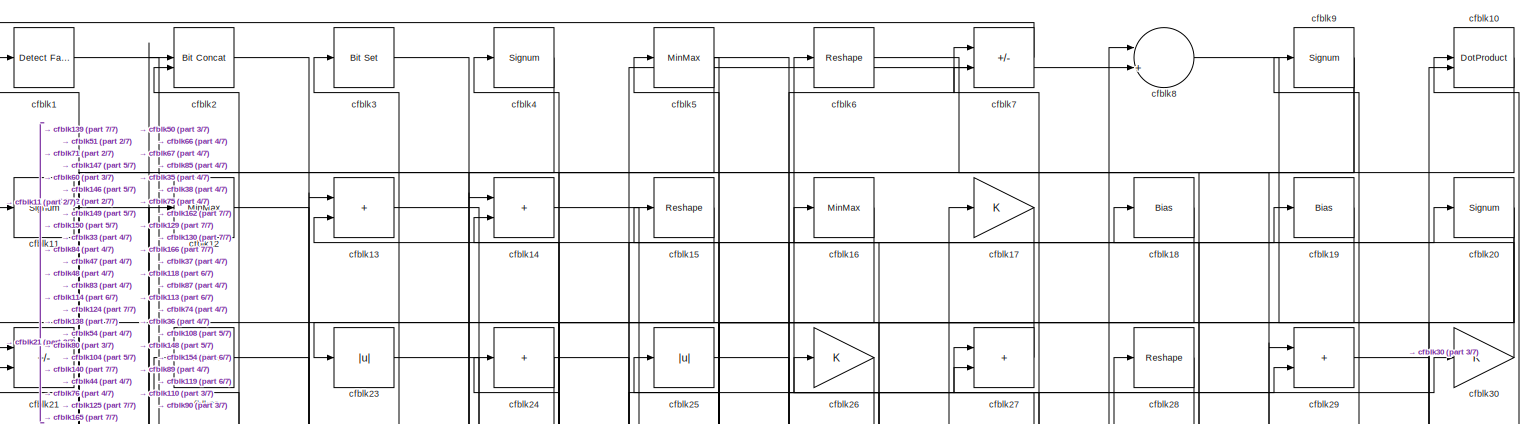
[diagram: root canvas - part 1/7, full width, top band]
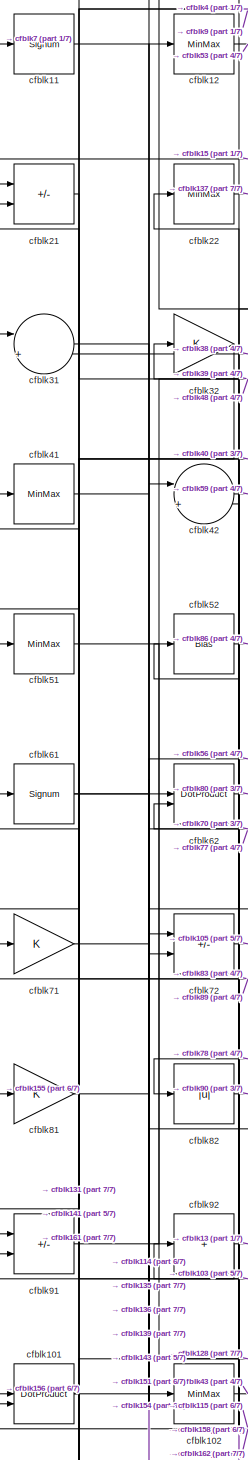
[diagram: root canvas - part 2/7, middle left region]
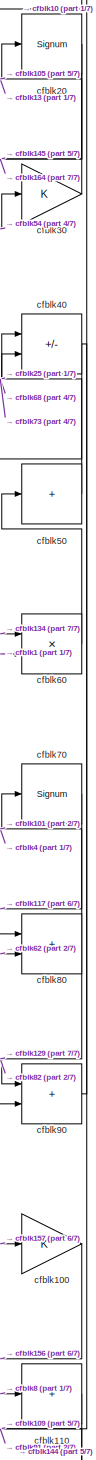
[diagram: root canvas - part 3/7, middle right region]
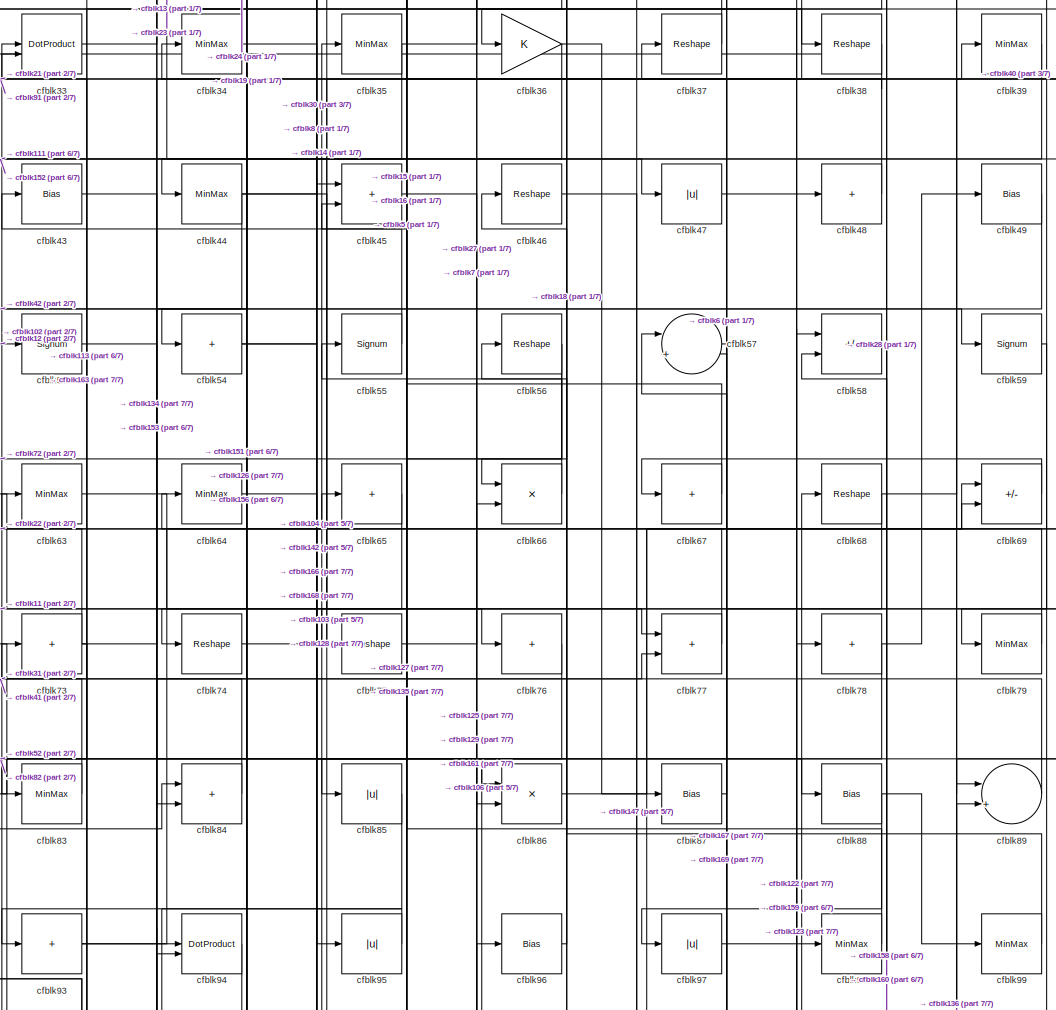
[diagram: root canvas - part 4/7, central region]
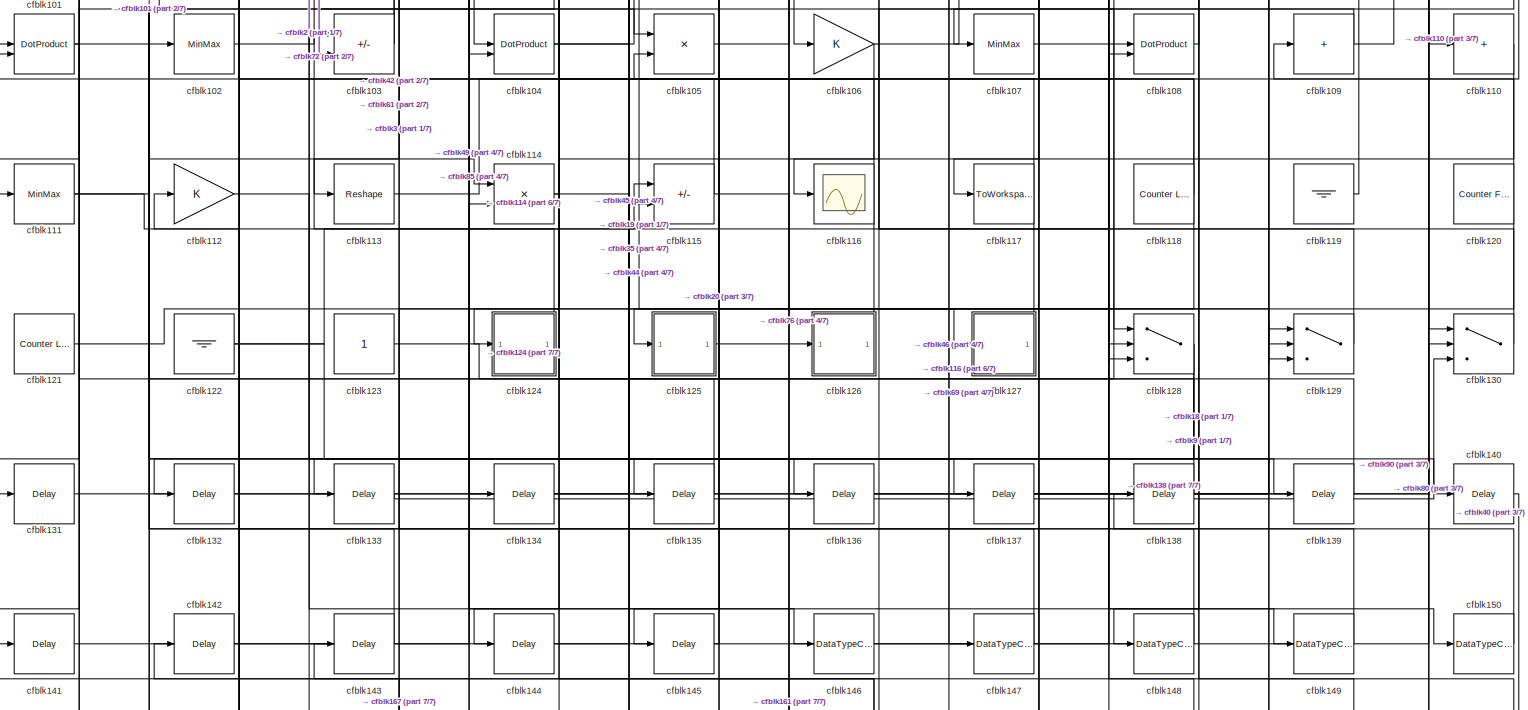
[diagram: root canvas - part 5/7, full width, bottom band]
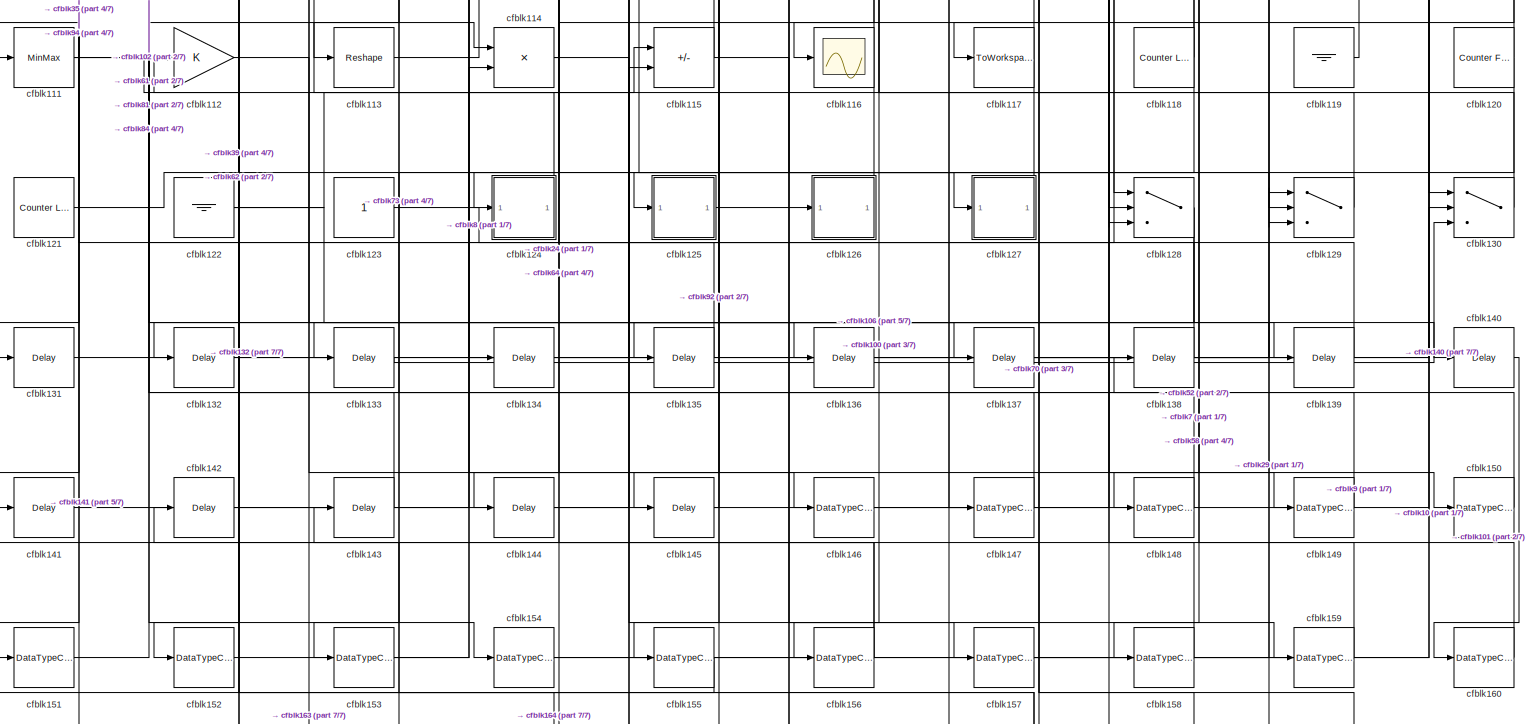
[diagram: root canvas - part 6/7, full width, bottom band]
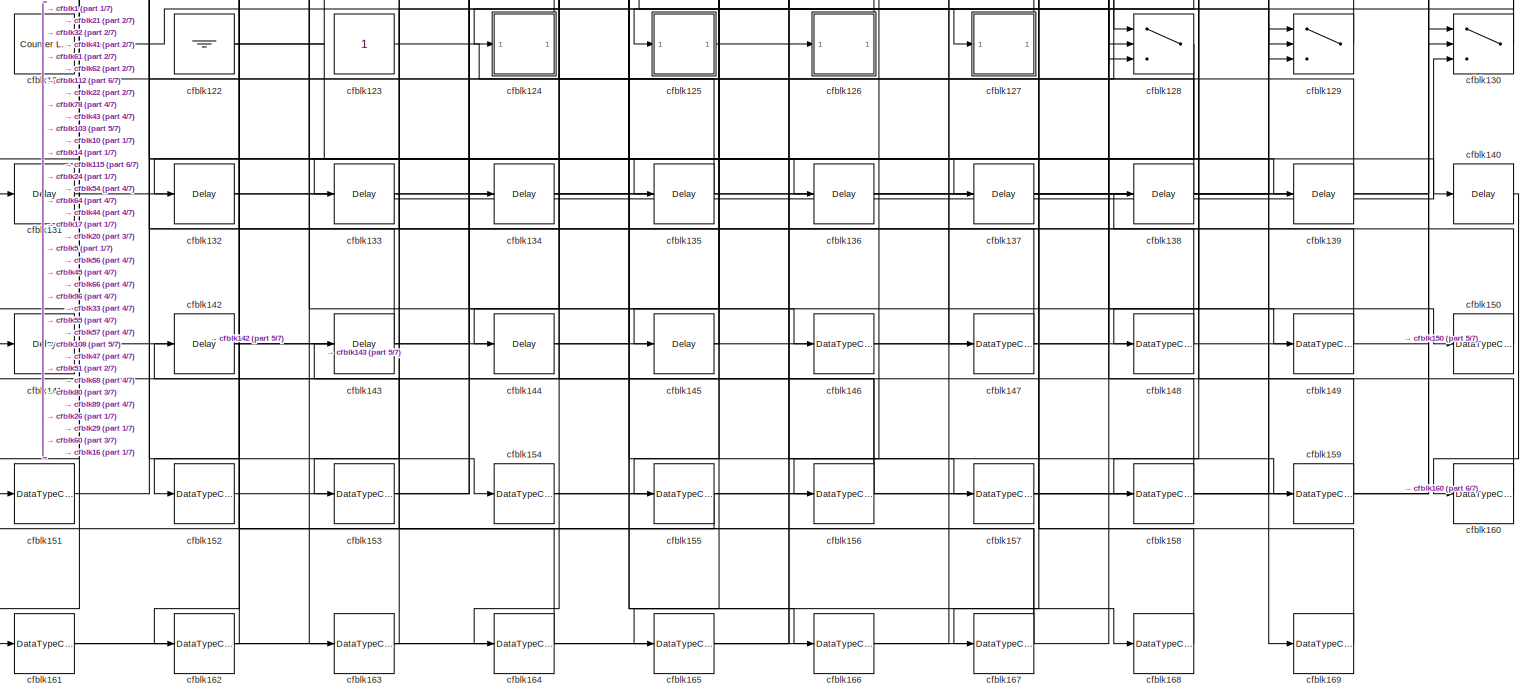
[diagram: root canvas - part 7/7, full width, bottom band]
MODEL slx_54edd1a698bd
KIND model
CONFIG AbsTol = auto
CONFIG EnableMultiTasking = off
CONFIG FixedStep = auto
CONFIG MaxStep = auto
CONFIG MinStep = auto
CONFIG RelTol = 1e-3
CONFIG SampleTimeConstraint = Unconstrained
CONFIG SolverName = VariableStepAuto
CONFIG StartTime = 0.0
CONFIG StopTime = 10.0
BLOCK [Reference] cfblk1  REF=hdlsllib/Logic and Bit
Operations/Detect Fall
Nonpositive
  SourceBlock = hdlsllib/Logic and Bit\nOperations/Detect Fall\nNonpositive
  SourceType = Detect Fall Nonpositive
BLOCK [DotProduct] cfblk10
  OutDataTypeStr = Inherit: Inherit via internal rule
BLOCK [Gain] cfblk100
BLOCK [DotProduct] cfblk101
  OutDataTypeStr = Inherit: Inherit via internal rule
BLOCK [MinMax] cfblk102
BLOCK [Sum] cfblk103
  IconShape = rectangular
  Inputs = +-
BLOCK [DotProduct] cfblk104
  OutDataTypeStr = Inherit: Inherit via internal rule
BLOCK [Product] cfblk105
  Inputs = */
  RndMeth = Zero
  SaturateOnIntegerOverflow = on
BLOCK [Gain] cfblk106
BLOCK [MinMax] cfblk107
BLOCK [DotProduct] cfblk108
  OutDataTypeStr = Inherit: Inherit via internal rule
BLOCK [Sum] cfblk109
  IconShape = rectangular
  Inputs = +
BLOCK [Signum] cfblk11
BLOCK [Sum] cfblk110
  IconShape = rectangular
  Inputs = +
BLOCK [MinMax] cfblk111
BLOCK [Gain] cfblk112
BLOCK [Reshape] cfblk113
BLOCK [Product] cfblk114
  Inputs = */
  RndMeth = Zero
  SaturateOnIntegerOverflow = on
BLOCK [Sum] cfblk115
  IconShape = rectangular
  Inputs = +-
BLOCK [Scope] cfblk116
  Floating = off
  NumInputPorts = 1
  ScopeSpecificationString = Simulink.scopes.TimeScopeBlockCfg('CurrentConfiguration', extmgr.ConfigurationSet(extmgr.Configuration('Core','General UI',true),extmgr.Configuration('Core','Source UI',true),extmgr.Configuration('Sources','WiredSimulink',true,'DataLoggingVariableName','ScopeData2','DataLoggingSaveFormat','Array','DataLoggingLimitDataPoints',true,'DataLoggingDecimation','1'),extmgr.Configuration('Visuals','Time Do...<+868ch>
BLOCK [ToWorkspace] cfblk117
  MaxDataPoints = inf
  SampleTime = -1
  SaveFormat = Timeseries
  VariableName = simout
BLOCK [Reference] cfblk118  REF=hdlsllib/Sources/Counter
Limited
  SourceBlock = hdlsllib/Sources/Counter\nLimited
  SourceType = Counter Limited
BLOCK [Ground] cfblk119
BLOCK [MinMax] cfblk12
BLOCK [Reference] cfblk120  REF=hdlsllib/Sources/Counter
Free-Running
  SourceBlock = hdlsllib/Sources/Counter\nFree-Running
  SourceType = Counter Free-Running
BLOCK [Reference] cfblk121  REF=hdlsllib/Sources/Counter
Limited
  SourceBlock = hdlsllib/Sources/Counter\nLimited
  SourceType = Counter Limited
BLOCK [Ground] cfblk122
BLOCK [Constant] cfblk123
  SampleTime = -1
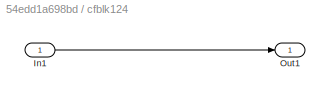
BLOCK [SubSystem] cfblk124
  LibrarySourceBlock = hdlsllib/Ports &\nSubsystems/Subsystem
BLOCK [Inport] cfblk124/In1
BLOCK [Outport] cfblk124/Out1
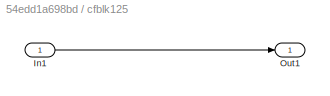
BLOCK [SubSystem] cfblk125
  LibrarySourceBlock = hdlsllib/Ports &\nSubsystems/Subsystem
BLOCK [Inport] cfblk125/In1
BLOCK [Outport] cfblk125/Out1
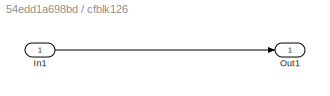
BLOCK [SubSystem] cfblk126
  LibrarySourceBlock = hdlsllib/Ports &\nSubsystems/Subsystem
BLOCK [Inport] cfblk126/In1
BLOCK [Outport] cfblk126/Out1
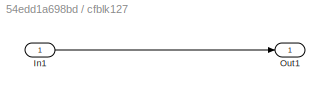
BLOCK [SubSystem] cfblk127
  LibrarySourceBlock = hdlsllib/Ports &\nSubsystems/Subsystem
BLOCK [Inport] cfblk127/In1
BLOCK [Outport] cfblk127/Out1
BLOCK [Switch] cfblk128
  InputSameDT = off
  SaturateOnIntegerOverflow = off
BLOCK [Switch] cfblk129
  InputSameDT = off
  SaturateOnIntegerOverflow = off
BLOCK [Sum] cfblk13
  IconShape = rectangular
BLOCK [Switch] cfblk130
  InputSameDT = off
  SaturateOnIntegerOverflow = off
BLOCK [Delay] cfblk131
  InputPortMap = u0
  SampleTime = 1
BLOCK [Delay] cfblk132
  InputPortMap = u0
  SampleTime = 1
BLOCK [Delay] cfblk133
  InputPortMap = u0
  SampleTime = 1
BLOCK [Delay] cfblk134
  InputPortMap = u0
  SampleTime = 1
BLOCK [Delay] cfblk135
  InputPortMap = u0
  SampleTime = 1
BLOCK [Delay] cfblk136
  InputPortMap = u0
  SampleTime = 1
BLOCK [Delay] cfblk137
  InputPortMap = u0
  SampleTime = 1
BLOCK [Delay] cfblk138
  InputPortMap = u0
  SampleTime = 1
BLOCK [Delay] cfblk139
  InputPortMap = u0
  SampleTime = 1
BLOCK [Sum] cfblk14
  IconShape = rectangular
BLOCK [Delay] cfblk140
  InputPortMap = u0
  SampleTime = 1
BLOCK [Delay] cfblk141
  InputPortMap = u0
  SampleTime = 1
BLOCK [Delay] cfblk142
  InputPortMap = u0
  SampleTime = 1
BLOCK [Delay] cfblk143
  InputPortMap = u0
  SampleTime = 1
BLOCK [Delay] cfblk144
  InputPortMap = u0
  SampleTime = 1
BLOCK [Delay] cfblk145
  InputPortMap = u0
  SampleTime = 1
BLOCK [DataTypeConversion] cfblk146
  OutDataTypeStr = uint8
  RndMeth = Floor
  SaturateOnIntegerOverflow = off
BLOCK [DataTypeConversion] cfblk147
  OutDataTypeStr = uint8
  RndMeth = Floor
  SaturateOnIntegerOverflow = off
BLOCK [DataTypeConversion] cfblk148
  OutDataTypeStr = uint8
  RndMeth = Floor
  SaturateOnIntegerOverflow = off
BLOCK [DataTypeConversion] cfblk149
  OutDataTypeStr = boolean
  RndMeth = Floor
  SaturateOnIntegerOverflow = off
BLOCK [Reshape] cfblk15
BLOCK [DataTypeConversion] cfblk150
  OutDataTypeStr = uint8
  RndMeth = Floor
  SaturateOnIntegerOverflow = off
BLOCK [DataTypeConversion] cfblk151
  OutDataTypeStr = uint8
  RndMeth = Floor
  SaturateOnIntegerOverflow = off
BLOCK [DataTypeConversion] cfblk152
  OutDataTypeStr = uint8
  RndMeth = Floor
  SaturateOnIntegerOverflow = off
BLOCK [DataTypeConversion] cfblk153
  OutDataTypeStr = uint8
  RndMeth = Floor
  SaturateOnIntegerOverflow = off
BLOCK [DataTypeConversion] cfblk154
  RndMeth = Floor
  SaturateOnIntegerOverflow = off
BLOCK [DataTypeConversion] cfblk155
  OutDataTypeStr = uint8
  RndMeth = Floor
  SaturateOnIntegerOverflow = off
BLOCK [DataTypeConversion] cfblk156
  RndMeth = Floor
  SaturateOnIntegerOverflow = off
BLOCK [DataTypeConversion] cfblk157
  OutDataTypeStr = uint8
  RndMeth = Floor
  SaturateOnIntegerOverflow = off
BLOCK [DataTypeConversion] cfblk158
  OutDataTypeStr = uint8
  RndMeth = Floor
  SaturateOnIntegerOverflow = off
BLOCK [DataTypeConversion] cfblk159
  OutDataTypeStr = uint8
  RndMeth = Floor
  SaturateOnIntegerOverflow = off
BLOCK [MinMax] cfblk16
BLOCK [DataTypeConversion] cfblk160
  OutDataTypeStr = uint8
  RndMeth = Floor
  SaturateOnIntegerOverflow = off
BLOCK [DataTypeConversion] cfblk161
  RndMeth = Floor
  SaturateOnIntegerOverflow = off
BLOCK [DataTypeConversion] cfblk162
  OutDataTypeStr = uint8
  RndMeth = Floor
  SaturateOnIntegerOverflow = off
BLOCK [DataTypeConversion] cfblk163
  OutDataTypeStr = uint8
  RndMeth = Floor
  SaturateOnIntegerOverflow = off
BLOCK [DataTypeConversion] cfblk164
  OutDataTypeStr = uint8
  RndMeth = Floor
  SaturateOnIntegerOverflow = off
BLOCK [DataTypeConversion] cfblk165
  OutDataTypeStr = uint8
  RndMeth = Floor
  SaturateOnIntegerOverflow = off
BLOCK [DataTypeConversion] cfblk166
  OutDataTypeStr = uint8
  RndMeth = Floor
  SaturateOnIntegerOverflow = off
BLOCK [DataTypeConversion] cfblk167
  RndMeth = Floor
  SaturateOnIntegerOverflow = off
BLOCK [DataTypeConversion] cfblk168
  OutDataTypeStr = uint8
  RndMeth = Floor
  SaturateOnIntegerOverflow = off
BLOCK [DataTypeConversion] cfblk169
  OutDataTypeStr = uint8
  RndMeth = Floor
  SaturateOnIntegerOverflow = off
BLOCK [Gain] cfblk17
BLOCK [Bias] cfblk18
  Bias = 0.0
  SaturateOnIntegerOverflow = off
BLOCK [Bias] cfblk19
  Bias = 0.0
  SaturateOnIntegerOverflow = off
BLOCK [Reference] cfblk2  REF=hdlsllib/Logic and Bit
Operations/Bit Concat
  SourceBlock = hdlsllib/Logic and Bit\nOperations/Bit Concat
  SourceType = Bit Concat
BLOCK [Signum] cfblk20
BLOCK [Sum] cfblk21
  IconShape = rectangular
  Inputs = +-
BLOCK [MinMax] cfblk22
BLOCK [Abs] cfblk23
  SaturateOnIntegerOverflow = off
BLOCK [Sum] cfblk24
  IconShape = rectangular
  Inputs = +
BLOCK [Abs] cfblk25
  SaturateOnIntegerOverflow = off
BLOCK [Gain] cfblk26
BLOCK [Sum] cfblk27
  IconShape = rectangular
BLOCK [Reshape] cfblk28
BLOCK [Sum] cfblk29
  IconShape = rectangular
BLOCK [Reference] cfblk3  REF=simulink/Logic and Bit
Operations/Bit Set
  LibrarySourceBlock = hdlsllib/Logic and Bit\nOperations/Bit Set
  SourceBlock = simulink/Logic and Bit\nOperations/Bit Set
  SourceType = Bit Set
BLOCK [Gain] cfblk30
BLOCK [Sum] cfblk31
  Inputs = |++
BLOCK [Gain] cfblk32
BLOCK [DotProduct] cfblk33
  OutDataTypeStr = Inherit: Inherit via internal rule
BLOCK [MinMax] cfblk34
BLOCK [MinMax] cfblk35
BLOCK [Gain] cfblk36
BLOCK [Reshape] cfblk37
BLOCK [Reshape] cfblk38
BLOCK [MinMax] cfblk39
BLOCK [Signum] cfblk4
BLOCK [Sum] cfblk40
  IconShape = rectangular
  Inputs = +-
BLOCK [MinMax] cfblk41
BLOCK [Sum] cfblk42
  Inputs = |++
BLOCK [Bias] cfblk43
  Bias = 0.0
  SaturateOnIntegerOverflow = off
BLOCK [MinMax] cfblk44
BLOCK [Sum] cfblk45
  IconShape = rectangular
BLOCK [Reshape] cfblk46
BLOCK [Abs] cfblk47
  SaturateOnIntegerOverflow = off
BLOCK [Sum] cfblk48
  IconShape = rectangular
  Inputs = +
BLOCK [Bias] cfblk49
  Bias = 0.0
  SaturateOnIntegerOverflow = off
BLOCK [MinMax] cfblk5
BLOCK [Sum] cfblk50
  IconShape = rectangular
  Inputs = +
BLOCK [MinMax] cfblk51
BLOCK [Bias] cfblk52
  Bias = 0.0
  SaturateOnIntegerOverflow = off
BLOCK [Signum] cfblk53
BLOCK [Sum] cfblk54
  IconShape = rectangular
  Inputs = +
BLOCK [Signum] cfblk55
BLOCK [Reshape] cfblk56
BLOCK [Sum] cfblk57
  Inputs = |++
BLOCK [Sum] cfblk58
  IconShape = rectangular
  Inputs = +-
BLOCK [Signum] cfblk59
BLOCK [Reshape] cfblk6
BLOCK [Product] cfblk60
  Inputs = */
  RndMeth = Zero
  SaturateOnIntegerOverflow = on
BLOCK [Signum] cfblk61
BLOCK [DotProduct] cfblk62
  OutDataTypeStr = Inherit: Inherit via internal rule
BLOCK [MinMax] cfblk63
BLOCK [MinMax] cfblk64
BLOCK [Sum] cfblk65
  IconShape = rectangular
  Inputs = +
BLOCK [Product] cfblk66
  Inputs = */
  RndMeth = Zero
  SaturateOnIntegerOverflow = on
BLOCK [Sum] cfblk67
  IconShape = rectangular
  Inputs = +
BLOCK [Reshape] cfblk68
BLOCK [Sum] cfblk69
  IconShape = rectangular
  Inputs = +-
BLOCK [Sum] cfblk7
  IconShape = rectangular
  Inputs = +-
BLOCK [Signum] cfblk70
BLOCK [Gain] cfblk71
BLOCK [Sum] cfblk72
  IconShape = rectangular
  Inputs = +-
BLOCK [Sum] cfblk73
  IconShape = rectangular
  Inputs = +
BLOCK [Reshape] cfblk74
BLOCK [Reshape] cfblk75
BLOCK [Sum] cfblk76
  IconShape = rectangular
  Inputs = +
BLOCK [Sum] cfblk77
  IconShape = rectangular
BLOCK [Sum] cfblk78
  IconShape = rectangular
  Inputs = +
BLOCK [MinMax] cfblk79
BLOCK [Sum] cfblk8
  Inputs = |++
BLOCK [Sum] cfblk80
  IconShape = rectangular
BLOCK [Gain] cfblk81
BLOCK [Abs] cfblk82
  SaturateOnIntegerOverflow = off
BLOCK [MinMax] cfblk83
BLOCK [Sum] cfblk84
  IconShape = rectangular
BLOCK [Abs] cfblk85
  SaturateOnIntegerOverflow = off
BLOCK [Product] cfblk86
  Inputs = */
  RndMeth = Zero
  SaturateOnIntegerOverflow = on
BLOCK [Bias] cfblk87
  Bias = 0.0
  SaturateOnIntegerOverflow = off
BLOCK [Bias] cfblk88
  Bias = 0.0
  SaturateOnIntegerOverflow = off
BLOCK [Sum] cfblk89
  Inputs = |++
BLOCK [Signum] cfblk9
BLOCK [Sum] cfblk90
  IconShape = rectangular
BLOCK [Sum] cfblk91
  IconShape = rectangular
  Inputs = +-
BLOCK [Sum] cfblk92
  IconShape = rectangular
  Inputs = +
BLOCK [Sum] cfblk93
  IconShape = rectangular
  Inputs = +
BLOCK [DotProduct] cfblk94
  OutDataTypeStr = Inherit: Inherit via internal rule
BLOCK [Abs] cfblk95
  SaturateOnIntegerOverflow = off
BLOCK [Bias] cfblk96
  Bias = 0.0
  SaturateOnIntegerOverflow = off
BLOCK [Abs] cfblk97
  SaturateOnIntegerOverflow = off
BLOCK [MinMax] cfblk98
BLOCK [MinMax] cfblk99
LINE cfblk100:1 -> cfblk156:1
NET cfblk101:1 -> cfblk141:1, cfblk70:1
LINE cfblk102:1 -> cfblk43:1
NET cfblk103:1 -> cfblk42:2, cfblk61:1
NET cfblk104:1 -> cfblk19:1, cfblk35:1
LINE cfblk105:1 -> cfblk20:1
NET cfblk106:1 -> cfblk116:1, cfblk69:2
LINE cfblk107:1 -> cfblk149:1
LINE cfblk108:1 -> cfblk18:1
NET cfblk109:1 -> cfblk107:1, cfblk90:2
LINE cfblk10:1 -> cfblk124:1
LINE cfblk110:1 -> cfblk144:1
NET cfblk111:1 -> cfblk115:1, cfblk84:1
LINE cfblk112:1 -> cfblk163:1
LINE cfblk113:1 -> cfblk8:1
NET cfblk114:1 -> cfblk157:1, cfblk24:1
NET cfblk115:1 -> cfblk159:1, cfblk92:1
NET cfblk118:1 -> cfblk155:1, cfblk52:1, cfblk7:2
LINE cfblk119:1 -> cfblk9:1
LINE cfblk11:1 -> cfblk77:1
NET cfblk120:1 -> cfblk101:2, cfblk153:1
LINE cfblk121:1 -> cfblk127:1
NET cfblk122:1 -> cfblk169:1, cfblk78:1
LINE cfblk123:1 -> cfblk68:1
LINE cfblk124/In1:1 -> cfblk124/Out1:1
LINE cfblk124:1 -> cfblk103:1
LINE cfblk125/In1:1 -> cfblk125/Out1:1
LINE cfblk125:1 -> cfblk66:2
LINE cfblk126/In1:1 -> cfblk126/Out1:1
LINE cfblk126:1 -> cfblk33:1
LINE cfblk127/In1:1 -> cfblk127/Out1:1
LINE cfblk127:1 -> cfblk55:1
NET cfblk128:1 -> cfblk132:1, cfblk133:1
LINE cfblk129:1 -> cfblk26:1
LINE cfblk12:1 -> cfblk53:1
LINE cfblk130:1 -> cfblk16:1
LINE cfblk131:1 -> cfblk130:2
LINE cfblk132:1 -> cfblk115:2
LINE cfblk133:1 -> cfblk130:3
LINE cfblk134:1 -> cfblk60:1
LINE cfblk135:1 -> cfblk62:1
LINE cfblk136:1 -> cfblk89:2
LINE cfblk137:1 -> cfblk129:1
LINE cfblk138:1 -> cfblk14:2
LINE cfblk139:1 -> cfblk1:1
LINE cfblk13:1 -> cfblk47:1
LINE cfblk140:1 -> cfblk160:1
LINE cfblk141:1 -> cfblk114:2
LINE cfblk142:1 -> cfblk45:1
LINE cfblk143:1 -> cfblk72:1
LINE cfblk144:1 -> cfblk80:1
LINE cfblk145:1 -> cfblk105:2
LINE cfblk146:1 -> cfblk108:1
LINE cfblk147:1 -> cfblk2:1
LINE cfblk148:1 -> cfblk2:2
LINE cfblk149:1 -> cfblk3:1
LINE cfblk14:1 -> cfblk76:1
LINE cfblk150:1 -> cfblk138:1
LINE cfblk151:1 -> cfblk102:1
LINE cfblk152:1 -> cfblk94:1
LINE cfblk153:1 -> cfblk94:2
NET cfblk154:1 -> cfblk10:2, cfblk29:1
LINE cfblk155:1 -> cfblk81:1
NET cfblk156:1 -> cfblk101:1, cfblk64:1
LINE cfblk157:1 -> cfblk100:1
LINE cfblk158:1 -> cfblk62:2
LINE cfblk159:1 -> cfblk58:1
LINE cfblk15:1 -> cfblk21:1
LINE cfblk160:1 -> cfblk58:2
NET cfblk161:1 -> cfblk108:2, cfblk96:1
LINE cfblk162:1 -> cfblk32:1
LINE cfblk163:1 -> cfblk33:2
LINE cfblk164:1 -> cfblk112:1
LINE cfblk165:1 -> cfblk126:1
LINE cfblk166:1 -> cfblk17:1
NET cfblk167:1 -> cfblk142:1, cfblk143:1
LINE cfblk168:1 -> cfblk57:1
LINE cfblk169:1 -> cfblk57:2
LINE cfblk16:1 -> cfblk85:1
LINE cfblk17:1 -> cfblk165:1
LINE cfblk18:1 -> cfblk66:1
LINE cfblk19:1 -> cfblk54:1
LINE cfblk1:1 -> cfblk60:2
NET cfblk20:1 -> cfblk145:1, cfblk164:1
LINE cfblk21:1 -> cfblk131:1
LINE cfblk22:1 -> cfblk137:1
LINE cfblk23:1 -> cfblk48:1
NET cfblk24:1 -> cfblk140:1, cfblk83:1
LINE cfblk25:1 -> cfblk29:2
LINE cfblk26:1 -> cfblk162:1
LINE cfblk27:1 -> cfblk23:1
LINE cfblk28:1 -> cfblk36:1
LINE cfblk29:1 -> cfblk130:1
LINE cfblk2:1 -> cfblk146:1
LINE cfblk30:1 -> cfblk13:2
LINE cfblk31:1 -> cfblk42:1
LINE cfblk32:1 -> cfblk161:1
LINE cfblk33:1 -> cfblk14:1
LINE cfblk34:1 -> cfblk86:1
NET cfblk35:1 -> cfblk111:1, cfblk27:1
NET cfblk36:1 -> cfblk44:1, cfblk87:1
LINE cfblk37:1 -> cfblk6:1
LINE cfblk38:1 -> cfblk31:2
LINE cfblk39:1 -> cfblk152:1
LINE cfblk3:1 -> cfblk150:1
NET cfblk40:1 -> cfblk109:1, cfblk91:1
LINE cfblk41:1 -> cfblk136:1
LINE cfblk42:1 -> cfblk59:1
LINE cfblk43:1 -> cfblk134:1
NET cfblk44:1 -> cfblk103:2, cfblk128:2, cfblk8:2
LINE cfblk45:1 -> cfblk129:2
LINE cfblk46:1 -> cfblk147:1
LINE cfblk47:1 -> cfblk128:3
LINE cfblk48:1 -> cfblk21:2
LINE cfblk49:1 -> cfblk104:2
LINE cfblk4:1 -> cfblk71:1
LINE cfblk50:1 -> cfblk25:1
LINE cfblk51:1 -> cfblk128:1
LINE cfblk52:1 -> cfblk86:2
LINE cfblk53:1 -> cfblk88:1
NET cfblk54:1 -> cfblk166:1, cfblk30:1
LINE cfblk55:1 -> cfblk34:1
NET cfblk56:1 -> cfblk135:1, cfblk72:2
LINE cfblk57:1 -> cfblk167:1
LINE cfblk58:1 -> cfblk158:1
LINE cfblk59:1 -> cfblk79:1
NET cfblk5:1 -> cfblk125:1, cfblk38:1, cfblk84:2
LINE cfblk60:1 -> cfblk50:1
NET cfblk61:1 -> cfblk114:1, cfblk139:1
LINE cfblk62:1 -> cfblk80:2
LINE cfblk63:1 -> cfblk95:1
LINE cfblk64:1 -> cfblk168:1
LINE cfblk65:1 -> cfblk75:1
LINE cfblk66:1 -> cfblk15:1
LINE cfblk67:1 -> cfblk5:1
NET cfblk68:1 -> cfblk40:2, cfblk74:1
LINE cfblk69:1 -> cfblk67:1
LINE cfblk6:1 -> cfblk89:1
LINE cfblk70:1 -> cfblk117:1
LINE cfblk71:1 -> cfblk12:1
LINE cfblk72:1 -> cfblk105:1
NET cfblk73:1 -> cfblk113:1, cfblk40:1, cfblk63:1
LINE cfblk74:1 -> cfblk28:1
LINE cfblk75:1 -> cfblk7:1
LINE cfblk76:1 -> cfblk106:1
LINE cfblk77:1 -> cfblk22:1
NET cfblk78:1 -> cfblk49:1, cfblk82:1
LINE cfblk79:1 -> cfblk37:1
LINE cfblk7:1 -> cfblk11:1
NET cfblk80:1 -> cfblk129:3, cfblk4:1
LINE cfblk81:1 -> cfblk154:1
LINE cfblk82:1 -> cfblk90:1
LINE cfblk83:1 -> cfblk31:1
LINE cfblk84:1 -> cfblk73:1
LINE cfblk85:1 -> cfblk104:1
LINE cfblk86:1 -> cfblk69:1
LINE cfblk87:1 -> cfblk27:2
NET cfblk88:1 -> cfblk97:1, cfblk99:1
LINE cfblk89:1 -> cfblk41:1
LINE cfblk8:1 -> cfblk110:1
LINE cfblk90:1 -> cfblk10:1
LINE cfblk91:1 -> cfblk39:1
NET cfblk92:1 -> cfblk13:1, cfblk91:2
NET cfblk93:1 -> cfblk65:1, cfblk77:2
LINE cfblk94:1 -> cfblk151:1
LINE cfblk95:1 -> cfblk93:1
LINE cfblk96:1 -> cfblk56:1
LINE cfblk97:1 -> cfblk98:1
LINE cfblk98:1 -> cfblk45:2
LINE cfblk99:1 -> cfblk46:1
NET cfblk9:1 -> cfblk148:1, cfblk51:1
note: NET lines group one-source signal fan-out (src -> all destinations, sorted); 1:1 wires keep LINE
